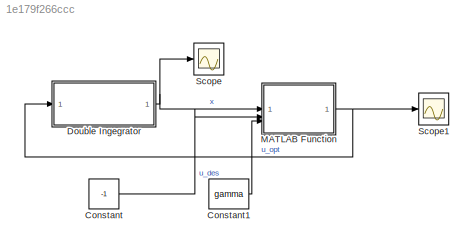
MODEL slx_1e179f266ccc
KIND model
CONFIG AbsTol = auto
CONFIG EnableMultiTasking = off
CONFIG FixedStep = auto
CONFIG MaxStep = auto
CONFIG MinStep = auto
CONFIG RelTol = 1e-3
CONFIG SampleTimeConstraint = Unconstrained
CONFIG SolverName = VariableStepAuto
CONFIG StartTime = 0.0
CONFIG StopTime = Tf
BLOCK [Constant] Constant
  Value = -1
BLOCK [Constant] Constant1
  Value = gamma
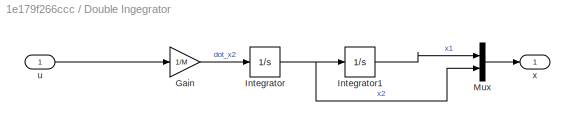
BLOCK [SubSystem] Double Ingegrator
BLOCK [Gain] Double Ingegrator/Gain
  Gain = 1/M
BLOCK [Integrator] Double Ingegrator/Integrator
  InitialCondition = x2_0
BLOCK [Integrator] Double Ingegrator/Integrator1
  InitialCondition = x1_0
BLOCK [Mux] Double Ingegrator/Mux
  DisplayOption = bar
  Inputs = 2
BLOCK [Inport] Double Ingegrator/u
BLOCK [Outport] Double Ingegrator/x
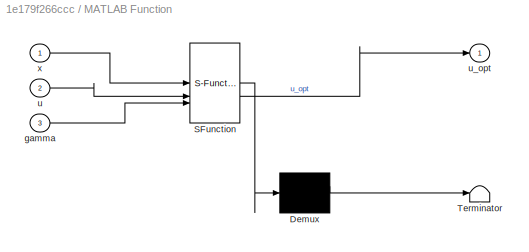
BLOCK [SubSystem] MATLAB Function
  ErrorFcn = Stateflow.Translate.translate
  PermitHierarchicalResolution = ExplicitOnly
  SFBlockType = MATLAB Function
  TreatAsAtomicUnit = on
BLOCK [Demux] MATLAB Function/ Demux 
  Outputs = 1
BLOCK [S-Function] MATLAB Function/ SFunction 
  EnableBusSupport = on
  FunctionName = sf_sfun
  PortCounts = [3 2]
  SFcnIsStateOwnerBlock = off
  SFunctionDeploymentMode = off
  Tag = Stateflow S-Function 2
BLOCK [Terminator] MATLAB Function/ Terminator 
BLOCK [Inport] MATLAB Function/gamma
  Port = 3
BLOCK [Inport] MATLAB Function/u
  Port = 2
BLOCK [Outport] MATLAB Function/u_opt
BLOCK [Inport] MATLAB Function/x
BLOCK [Scope] Scope
  Floating = off
  NumInputPorts = 1
  ScopeSpecificationString = Simulink.scopes.TimeScopeBlockCfg('CurrentConfiguration', extmgr.ConfigurationSet(extmgr.Configuration('Core','General UI',true),extmgr.Configuration('Core','Source UI',true),extmgr.Configuration('Sources','WiredSimulink',true),extmgr.Configuration('Visuals','Time Domain',true,'SerializedDisplays',{struct('MinYLimReal','-1.20239','MaxYLimReal','0.82804','YLabelReal','','MinYLimMag','0.00000','MaxY...<+1437ch>
BLOCK [Scope] Scope1
  Floating = off
  NumInputPorts = 1
  ScopeSpecificationString = Simulink.scopes.TimeScopeBlockCfg('CurrentConfiguration', extmgr.ConfigurationSet(extmgr.Configuration('Core','General UI',true),extmgr.Configuration('Core','Source UI',true),extmgr.Configuration('Sources','WiredSimulink',true,'DataLoggingVariableName','ScopeData1'),extmgr.Configuration('Visuals','Time Domain',true,'SerializedDisplays',{struct('MinYLimReal','-1.6643','MaxYLimReal','4.97874','YLabe...<+1470ch>
LINE Constant1:1 -> MATLAB Function:3
LINE Constant:1 -> MATLAB Function:2
LINE Double Ingegrator/Gain:1 -> Double Ingegrator/Integrator:1
LINE Double Ingegrator/Integrator1:1 -> Double Ingegrator/Mux:1
NET Double Ingegrator/Integrator:1 -> Double Ingegrator/Integrator1:1, Double Ingegrator/Mux:2
LINE Double Ingegrator/Mux:1 -> Double Ingegrator/x:1
LINE Double Ingegrator/u:1 -> Double Ingegrator/Gain:1
NET Double Ingegrator:1 -> MATLAB Function:1, Scope:1
NET MATLAB Function:1 -> Double Ingegrator:1, Scope1:1
note: NET lines group one-source signal fan-out (src -> all destinations, sorted); 1:1 wires keep LINE
CHART MATLAB Function states=1 transitions=1
  STATE_LABEL 'eML_blk_kernel()'
  STATE_LABEL "SCRIPT:\nfunction u_opt = fcn(x, u, gamma)\n    \n    x1 = x(1);\n    x2 = x(2);\n    u_des = u;\n\n    u_opt = double(0);\n \n    coder.extrinsic('py.DI_cbf_cvxpy.DI_cbf_solve')\n    \n\n    result = py.DI_cbf_cvxpy.DI_cbf_solve(x1, x2, u_des, gamma);\n\n\n    u_opt = double(result);\n  \n\nend\n"
CHART  states=0 transitions=0
